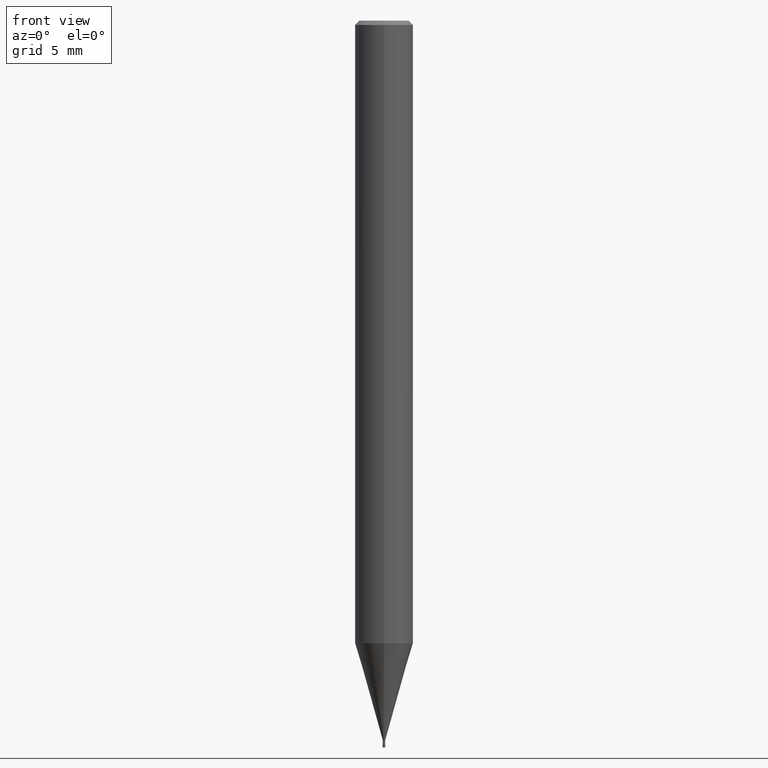
[diagram: clean part render]
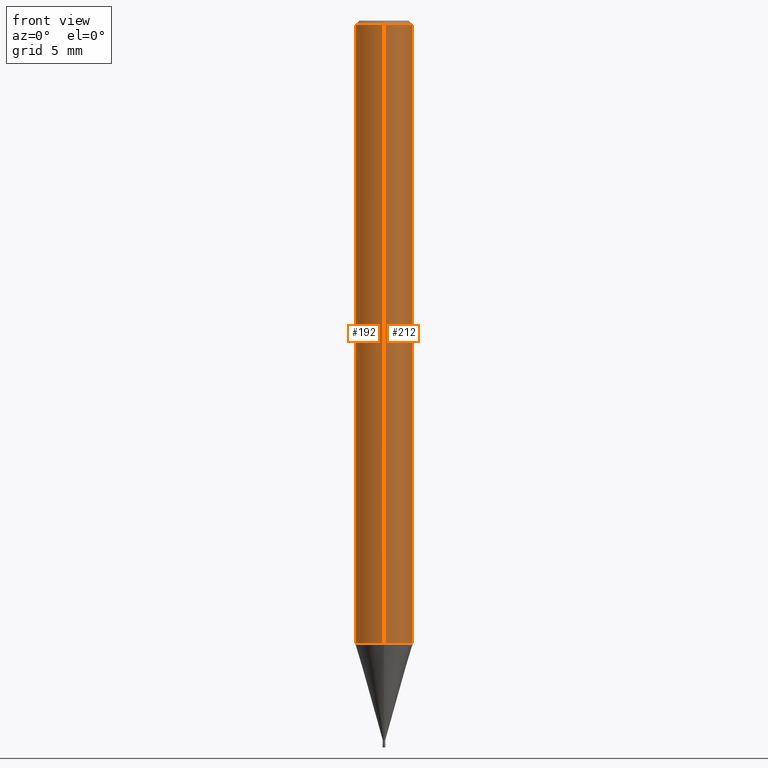
[diagram: same view with one multi-face feature highlighted, each face labeled with its STEP entity id]
A machine part, front view. The highlighted faces form ONE feature: a constant-radius fillet chain: 2 tangent blend faces with common blend radius 2 mm. The faces share edges in the B-rep.
Their STEP definitions:
[1] entity #212 (Cylinder):
#136=EDGE_CURVE('',#216,#162,#295,.T.);
#162=VERTEX_POINT('',#326);
#168=VERTEX_POINT('',#332);
#186=EDGE_CURVE('',#162,#206,#352,.T.);
#188=EDGE_CURVE('',#206,#168,#354,.T.);
#206=VERTEX_POINT('',#374);
#210=EDGE_CURVE('',#216,#168,#379,.T.);
#212=ADVANCED_FACE('',(#381),#382,.T.);
#216=VERTEX_POINT('',#386);
#295=LINE('',#470,#471);
#326=CARTESIAN_POINT('',(0.0,2.0,-42.822));
#332=CARTESIAN_POINT('',(2.44921270764475E-016,-2.0,-0.299999999999997));
#352=CIRCLE('',#539,2.0);
#354=LINE('',#542,#543);
#374=CARTESIAN_POINT('',(2.44921270764475E-016,-2.0,-42.822));
#379=CIRCLE('',#570,2.0);
#381=FACE_OUTER_BOUND('',#572,.T.);
#382=CYLINDRICAL_SURFACE('',#573,2.0);
#386=CARTESIAN_POINT('',(0.0,2.0,-0.299999999999997));
#470=CARTESIAN_POINT('',(-2.44921270764475E-016,2.0,-21.561));
#471=VECTOR('',#671,1.0);
#539=AXIS2_PLACEMENT_3D('',#744,#745,#746);
#542=CARTESIAN_POINT('',(2.44921270764475E-016,-2.0,-21.561));
#543=VECTOR('',#747,1.0);
#570=AXIS2_PLACEMENT_3D('',#779,#780,#781);
#572=EDGE_LOOP('',(#783,#784,#785,#786));
#573=AXIS2_PLACEMENT_3D('',#787,#788,#789);
#671=DIRECTION('',(0.0,0.0,-1.0));
#744=CARTESIAN_POINT('',(0.0,0.0,-42.822));
#745=DIRECTION('',(0.0,0.0,-1.0));
#746=DIRECTION('',(0.0,1.0,0.0));
#747=DIRECTION('',(-0.0,-0.0,1.0));
#779=CARTESIAN_POINT('',(0.0,0.0,-0.299999999999997));
#780=DIRECTION('',(0.0,0.0,-1.0));
#781=DIRECTION('',(0.0,1.0,0.0));
#783=ORIENTED_EDGE('',*,*,#136,.F.);
#784=ORIENTED_EDGE('',*,*,#210,.T.);
#785=ORIENTED_EDGE('',*,*,#188,.F.);
#786=ORIENTED_EDGE('',*,*,#186,.F.);
#787=CARTESIAN_POINT('',(0.0,0.0,-21.561));
#788=DIRECTION('',(-0.0,-0.0,1.0));
#789=DIRECTION('',(0.0,1.0,0.0));
[2] entity #192 (Cylinder):
#104=EDGE_CURVE('',#206,#162,#258,.T.);
#136=EDGE_CURVE('',#216,#162,#295,.T.);
#156=EDGE_CURVE('',#168,#216,#319,.T.);
#162=VERTEX_POINT('',#326);
#168=VERTEX_POINT('',#332);
#188=EDGE_CURVE('',#206,#168,#354,.T.);
#192=ADVANCED_FACE('',(#358),#359,.T.);
#206=VERTEX_POINT('',#374);
#216=VERTEX_POINT('',#386);
#258=CIRCLE('',#424,2.0);
#295=LINE('',#470,#471);
#319=CIRCLE('',#501,2.0);
#326=CARTESIAN_POINT('',(0.0,2.0,-42.822));
#332=CARTESIAN_POINT('',(2.44921270764475E-016,-2.0,-0.299999999999997));
#354=LINE('',#542,#543);
#358=FACE_OUTER_BOUND('',#547,.T.);
#359=CYLINDRICAL_SURFACE('',#548,2.0);
#374=CARTESIAN_POINT('',(2.44921270764475E-016,-2.0,-42.822));
#386=CARTESIAN_POINT('',(0.0,2.0,-0.299999999999997));
#424=AXIS2_PLACEMENT_3D('',#613,#614,#615);
#470=CARTESIAN_POINT('',(-2.44921270764475E-016,2.0,-21.561));
#471=VECTOR('',#671,1.0);
#501=AXIS2_PLACEMENT_3D('',#706,#707,#708);
#542=CARTESIAN_POINT('',(2.44921270764475E-016,-2.0,-21.561));
#543=VECTOR('',#747,1.0);
#547=EDGE_LOOP('',(#749,#750,#751,#752));
#548=AXIS2_PLACEMENT_3D('',#753,#754,#755);
#613=CARTESIAN_POINT('',(0.0,0.0,-42.822));
#614=DIRECTION('',(0.0,0.0,-1.0));
#615=DIRECTION('',(0.0,1.0,0.0));
#671=DIRECTION('',(0.0,0.0,-1.0));
#706=CARTESIAN_POINT('',(0.0,0.0,-0.299999999999997));
#707=DIRECTION('',(0.0,0.0,-1.0));
#708=DIRECTION('',(0.0,1.0,0.0));
#747=DIRECTION('',(-0.0,-0.0,1.0));
#749=ORIENTED_EDGE('',*,*,#136,.T.);
#750=ORIENTED_EDGE('',*,*,#104,.F.);
#751=ORIENTED_EDGE('',*,*,#188,.T.);
#752=ORIENTED_EDGE('',*,*,#156,.T.);
#753=CARTESIAN_POINT('',(0.0,0.0,-21.561));
#754=DIRECTION('',(-0.0,-0.0,1.0));
#755=DIRECTION('',(0.0,1.0,0.0));